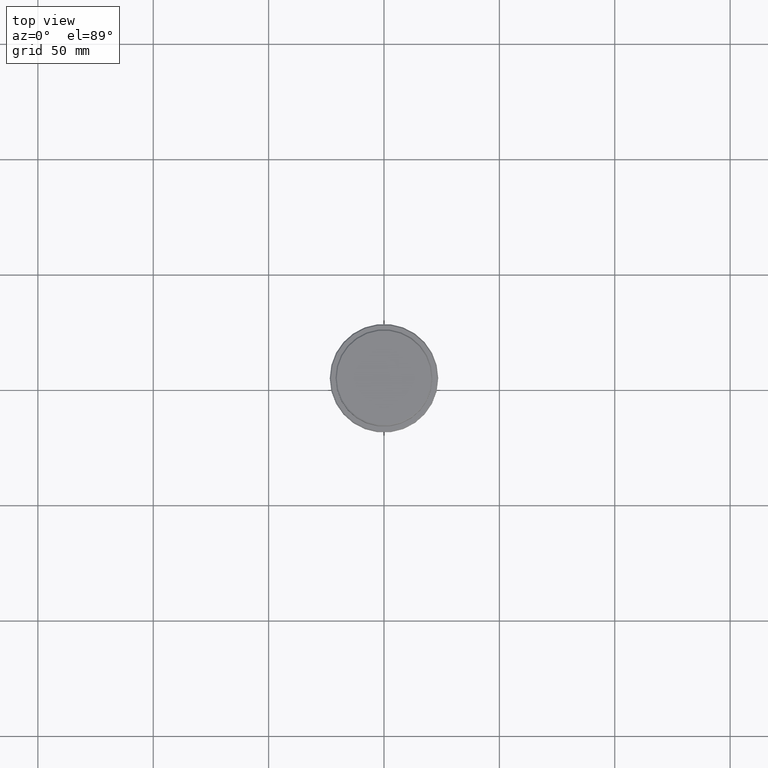
[diagram: clean part render]
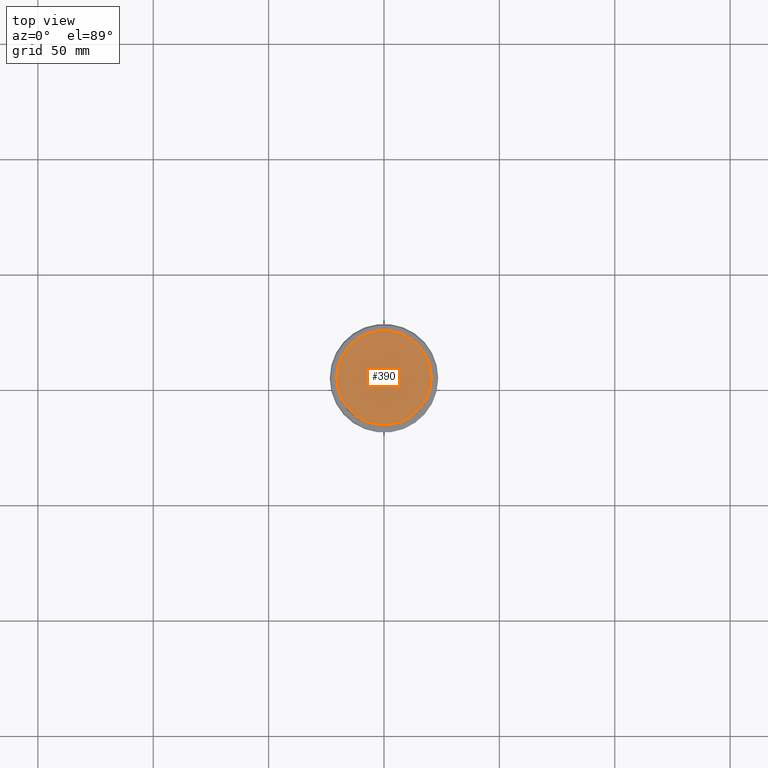
[diagram: same view with one face highlighted and labeled with its STEP entity id]
A machine part, top view. The second image highlights one B-rep face of the part: STEP entity #390.
In plain terms, the highlighted planar face has unit normal (0, -0, 1).
Its self-contained STEP definition (entity closure, byte-faithful):
#1 = VERTEX_POINT ( 'NONE', #1225 ) ;
#24 = CIRCLE ( 'NONE', #453, 20.50000000000004619 ) ;
#108 = PLANE ( 'NONE',  #1015 ) ;
#156 = ORIENTED_EDGE ( 'NONE', *, *, #1294, .T. ) ;
#235 = CARTESIAN_POINT ( 'NONE',  ( 20.50000000000004619, 2.541142108230760635E-15, 0.000000000000000000 ) ) ;
#390 = ADVANCED_FACE ( 'NONE', ( #1104 ), #108, .T. ) ;
#451 = DIRECTION ( 'NONE',  ( -0.000000000000000000, -0.000000000000000000, 1.000000000000000000 ) ) ;
#453 = AXIS2_PLACEMENT_3D ( 'NONE', #1115, #451, #681 ) ;
#555 = CARTESIAN_POINT ( 'NONE',  ( 0.000000000000000000, 0.000000000000000000, 0.000000000000000000 ) ) ;
#571 = CIRCLE ( 'NONE', #1092, 20.50000000000004619 ) ;
#681 = DIRECTION ( 'NONE',  ( 1.000000000000000000, 0.000000000000000000, 0.000000000000000000 ) ) ;
#804 = DIRECTION ( 'NONE',  ( -0.000000000000000000, -0.000000000000000000, 1.000000000000000000 ) ) ;
#896 = DIRECTION ( 'NONE',  ( 1.000000000000000000, 0.000000000000000000, 0.000000000000000000 ) ) ;
#908 = ORIENTED_EDGE ( 'NONE', *, *, #1132, .T. ) ;
#1003 = DIRECTION ( 'NONE',  ( 0.000000000000000000, -0.000000000000000000, 1.000000000000000000 ) ) ;
#1015 = AXIS2_PLACEMENT_3D ( 'NONE', #555, #1003, #896 ) ;
#1021 = VERTEX_POINT ( 'NONE', #235 ) ;
#1092 = AXIS2_PLACEMENT_3D ( 'NONE', #1273, #804, #1256 ) ;
#1104 = FACE_OUTER_BOUND ( 'NONE', #1370, .T. ) ;
#1115 = CARTESIAN_POINT ( 'NONE',  ( 0.000000000000000000, 0.000000000000000000, 0.000000000000000000 ) ) ;
#1132 = EDGE_CURVE ( 'NONE', #1021, #1, #571, .T. ) ;
#1225 = CARTESIAN_POINT ( 'NONE',  ( -20.50000000000004619, 0.000000000000000000, 0.000000000000000000 ) ) ;
#1256 = DIRECTION ( 'NONE',  ( 1.000000000000000000, 0.000000000000000000, 0.000000000000000000 ) ) ;
#1273 = CARTESIAN_POINT ( 'NONE',  ( 0.000000000000000000, 0.000000000000000000, 0.000000000000000000 ) ) ;
#1294 = EDGE_CURVE ( 'NONE', #1, #1021, #24, .T. ) ;
#1370 = EDGE_LOOP ( 'NONE', ( #156, #908 ) ) ;